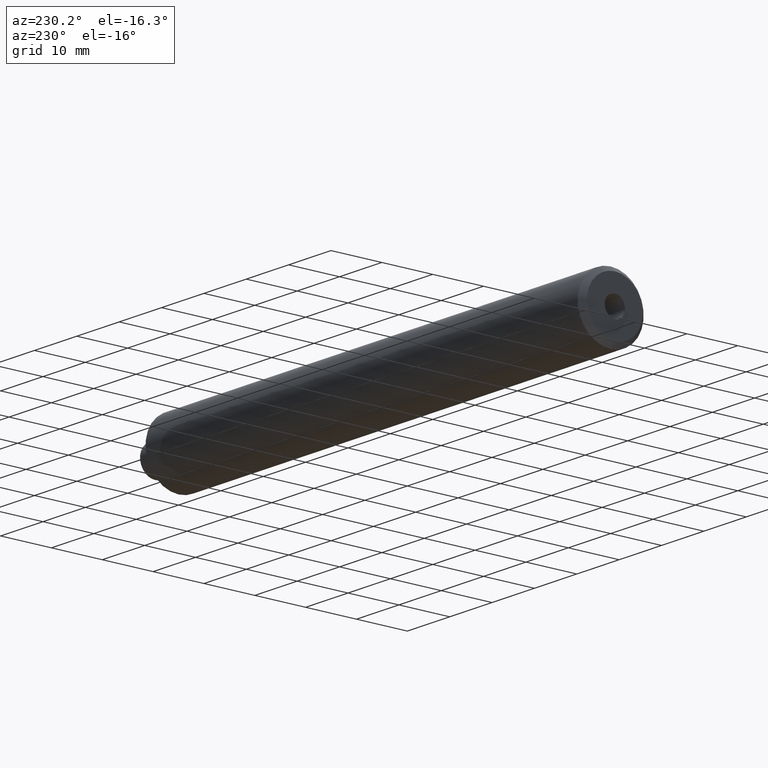
[diagram: clean part render]
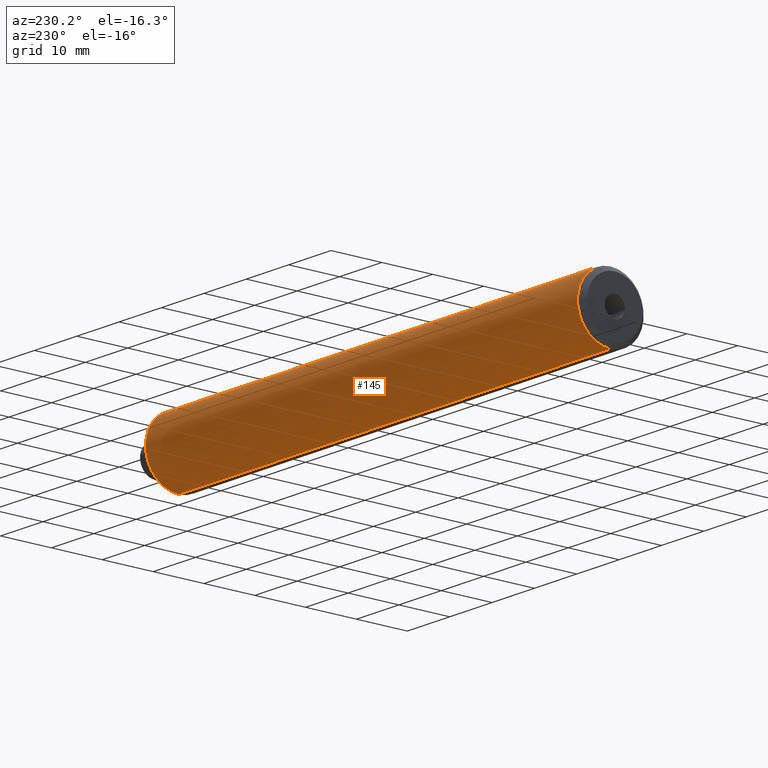
[diagram: same view with one face highlighted and labeled with its STEP entity id]
A machine part, auxiliary view. The second image highlights one B-rep face of the part: STEP entity #145.
In plain terms, the highlighted cylindrical surface (partial cylindrical patch) has radius 6.5 mm, axis along (1, 0, 0).
Its self-contained STEP definition (entity closure, byte-faithful):
#2 = VECTOR ( 'NONE', #662, 1000.000000000000000 ) ;
#4 = CARTESIAN_POINT ( 'NONE',  ( -102.0000000000000000, 0.0000000000000000000, 0.0000000000000000000 ) ) ;
#49 = DIRECTION ( 'NONE',  ( 1.000000000000000000, -0.0000000000000000000, -0.0000000000000000000 ) ) ;
#66 = EDGE_LOOP ( 'NONE', ( #864, #535, #936, #933 ) ) ;
#78 = DIRECTION ( 'NONE',  ( 0.0000000000000000000, 0.0000000000000000000, -1.000000000000000000 ) ) ;
#92 = VERTEX_POINT ( 'NONE', #545 ) ;
#124 = VERTEX_POINT ( 'NONE', #500 ) ;
#145 = ADVANCED_FACE ( 'NONE', ( #652 ), #384, .T. ) ;
#151 = EDGE_CURVE ( 'NONE', #124, #962, #176, .T. ) ;
#176 = LINE ( 'NONE', #668, #2 ) ;
#223 = CARTESIAN_POINT ( 'NONE',  ( 0.0000000000000000000, 0.0000000000000000000, -6.499999999999984900 ) ) ;
#268 = DIRECTION ( 'NONE',  ( 0.0000000000000000000, 0.0000000000000000000, -1.000000000000000000 ) ) ;
#384 = CYLINDRICAL_SURFACE ( 'NONE', #819, 6.499999999999984900 ) ;
#445 = DIRECTION ( 'NONE',  ( 1.000000000000000000, -0.0000000000000000000, -0.0000000000000000000 ) ) ;
#462 = CARTESIAN_POINT ( 'NONE',  ( -102.0000000000000000, 7.960204194457777700E-016, 6.499999999999984900 ) ) ;
#500 = CARTESIAN_POINT ( 'NONE',  ( -102.0000000000000000, 0.0000000000000000000, -6.499999999999984900 ) ) ;
#523 = VECTOR ( 'NONE', #49, 1000.000000000000000 ) ;
#535 = ORIENTED_EDGE ( 'NONE', *, *, #741, .T. ) ;
#536 = CARTESIAN_POINT ( 'NONE',  ( 0.0000000000000000000, 0.0000000000000000000, 0.0000000000000000000 ) ) ;
#545 = CARTESIAN_POINT ( 'NONE',  ( 0.0000000000000000000, 7.960204194457777700E-016, 6.499999999999984900 ) ) ;
#555 = CARTESIAN_POINT ( 'NONE',  ( 11.08730158730159100, 0.0000000000000000000, 0.0000000000000000000 ) ) ;
#566 = DIRECTION ( 'NONE',  ( 1.000000000000000000, -0.0000000000000000000, -0.0000000000000000000 ) ) ;
#597 = DIRECTION ( 'NONE',  ( 1.000000000000000000, -0.0000000000000000000, -0.0000000000000000000 ) ) ;
#646 = DIRECTION ( 'NONE',  ( 0.0000000000000000000, 0.0000000000000000000, -1.000000000000000000 ) ) ;
#652 = FACE_OUTER_BOUND ( 'NONE', #66, .T. ) ;
#662 = DIRECTION ( 'NONE',  ( 1.000000000000000000, -0.0000000000000000000, -0.0000000000000000000 ) ) ;
#668 = CARTESIAN_POINT ( 'NONE',  ( 11.08730158730159100, 0.0000000000000000000, -6.499999999999984900 ) ) ;
#671 = AXIS2_PLACEMENT_3D ( 'NONE', #4, #597, #78 ) ;
#741 = EDGE_CURVE ( 'NONE', #788, #92, #964, .T. ) ;
#766 = CIRCLE ( 'NONE', #671, 6.499999999999984900 ) ;
#788 = VERTEX_POINT ( 'NONE', #462 ) ;
#819 = AXIS2_PLACEMENT_3D ( 'NONE', #555, #566, #646 ) ;
#822 = CARTESIAN_POINT ( 'NONE',  ( 11.08730158730159100, 7.960204194457777700E-016, 6.499999999999984900 ) ) ;
#864 = ORIENTED_EDGE ( 'NONE', *, *, #974, .T. ) ;
#887 = AXIS2_PLACEMENT_3D ( 'NONE', #536, #445, #268 ) ;
#928 = CIRCLE ( 'NONE', #887, 6.499999999999984900 ) ;
#933 = ORIENTED_EDGE ( 'NONE', *, *, #151, .F. ) ;
#936 = ORIENTED_EDGE ( 'NONE', *, *, #1013, .F. ) ;
#962 = VERTEX_POINT ( 'NONE', #223 ) ;
#964 = LINE ( 'NONE', #822, #523 ) ;
#974 = EDGE_CURVE ( 'NONE', #124, #788, #766, .T. ) ;
#1013 = EDGE_CURVE ( 'NONE', #962, #92, #928, .T. ) ;